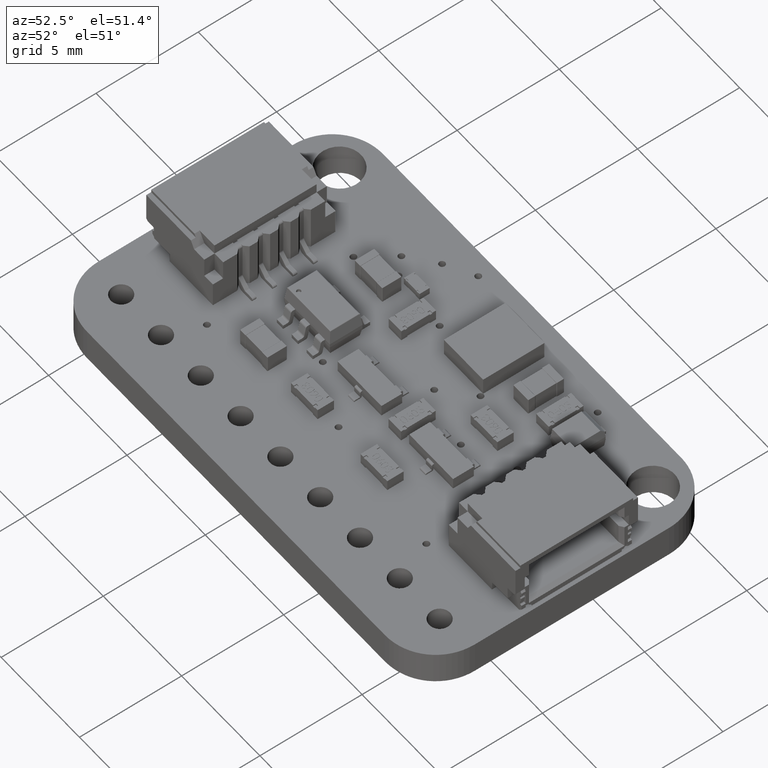
[diagram: clean part render]
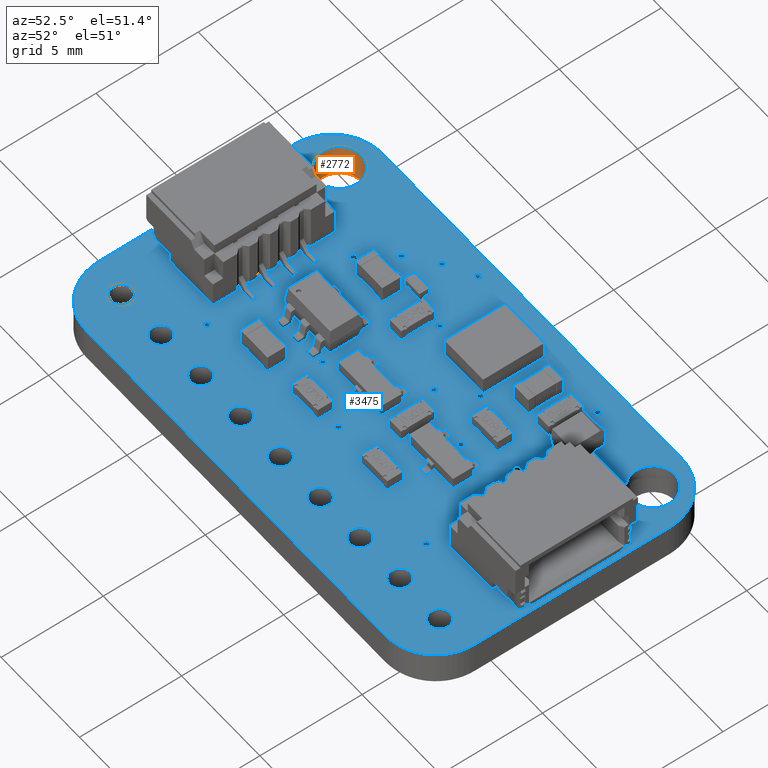
[diagram: same view with the hole feature highlighted: cylindrical wall and planar end face, labeled with their STEP entity ids]
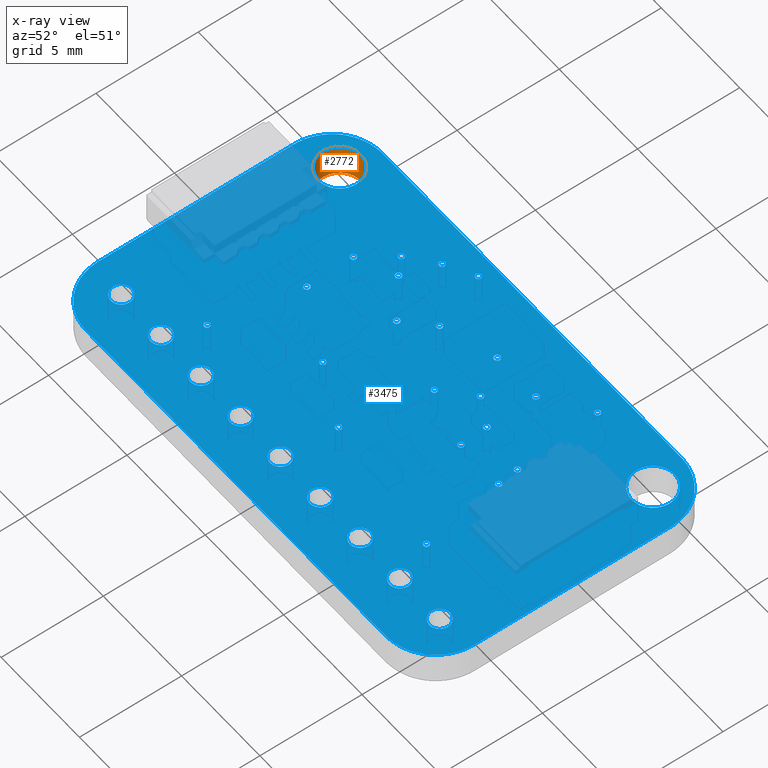
[diagram: x-ray of the same camera — body ghosted, the hole faces saturated]
A machine part, auxiliary view. The highlighted faces form one hole feature of diameter 2.1 mm: the cylindrical wall (entity #2772, orange) and its adjacent planar end face (entity #3475, blue) — they share a circular edge in the B-rep.
The next image is the same camera in x-ray (body ghosted, the hole faces saturated) — the bore reads through the body.
Wall:
#2772 = ADVANCED_FACE('',(#2773),#2800,.F.);
#2773 = FACE_BOUND('',#2774,.T.);
#2774 = EDGE_LOOP('',(#2775,#2785,#2792,#2793));
#2775 = ORIENTED_EDGE('',*,*,#2776,.T.);
#2776 = EDGE_CURVE('',#2777,#2779,#2781,.T.);
#2777 = VERTEX_POINT('',#2778);
#2778 = CARTESIAN_POINT('',(1.05,-0.75,-0.82));
#2779 = VERTEX_POINT('',#2780);
#2780 = CARTESIAN_POINT('',(1.05,-0.75,0.82));
#2781 = LINE('',#2782,#2783);
#2782 = CARTESIAN_POINT('',(1.05,-0.75,-0.82));
#2783 = VECTOR('',#2784,1.);
#2784 = DIRECTION('',(0.,0.,1.));
#2785 = ORIENTED_EDGE('',*,*,#2786,.T.);
#2786 = EDGE_CURVE('',#2779,#2779,#2787,.T.);
#2787 = CIRCLE('',#2788,1.05);
#2788 = AXIS2_PLACEMENT_3D('',#2789,#2790,#2791);
#2789 = CARTESIAN_POINT('',(0.,-0.75,0.82));
#2790 = DIRECTION('',(0.,0.,1.));
#2791 = DIRECTION('',(1.,0.,-0.));
#2792 = ORIENTED_EDGE('',*,*,#2776,.F.);
#2793 = ORIENTED_EDGE('',*,*,#2794,.F.);
#2794 = EDGE_CURVE('',#2777,#2777,#2795,.T.);
#2795 = CIRCLE('',#2796,1.05);
#2796 = AXIS2_PLACEMENT_3D('',#2797,#2798,#2799);
#2797 = CARTESIAN_POINT('',(0.,-0.75,-0.82));
#2798 = DIRECTION('',(0.,0.,1.));
#2799 = DIRECTION('',(1.,0.,-0.));
#2800 = CYLINDRICAL_SURFACE('',#2801,1.05);
#2801 = AXIS2_PLACEMENT_3D('',#2802,#2803,#2804);
#2802 = CARTESIAN_POINT('',(0.,-0.75,-0.82));
#2803 = DIRECTION('',(-0.,-0.,-1.));
#2804 = DIRECTION('',(1.,0.,-0.));
End face:
#110 = VERTEX_POINT('',#111);
#111 = CARTESIAN_POINT('',(19.5,1.,0.82));
#117 = EDGE_CURVE('',#110,#118,#120,.T.);
#118 = VERTEX_POINT('',#119);
#119 = CARTESIAN_POINT('',(0.5,1.,0.82));
#120 = LINE('',#121,#122);
#121 = CARTESIAN_POINT('',(19.5,1.,0.82));
#122 = VECTOR('',#123,1.);
#123 = DIRECTION('',(-1.,0.,0.));
#150 = VERTEX_POINT('',#151);
#151 = CARTESIAN_POINT('',(19.75982,0.98737,0.82));
#157 = EDGE_CURVE('',#150,#110,#158,.T.);
#158 = LINE('',#159,#160);
#159 = CARTESIAN_POINT('',(19.75982,0.98737,0.82));
#160 = VECTOR('',#161,1.);
#161 = DIRECTION('',(-0.998820595701,4.855324503005E-02,0.));
#179 = EDGE_CURVE('',#118,#180,#182,.T.);
#180 = VERTEX_POINT('',#181);
#181 = CARTESIAN_POINT('',(0.24018,0.98737,0.82));
#182 = LINE('',#183,#184);
#183 = CARTESIAN_POINT('',(0.5,1.,0.82));
#184 = VECTOR('',#185,1.);
#185 = DIRECTION('',(-0.998820595701,-4.855324503005E-02,0.));
#212 = VERTEX_POINT('',#213);
#213 = CARTESIAN_POINT('',(20.01117,0.95026,0.82));
#219 = EDGE_CURVE('',#212,#150,#220,.T.);
#220 = LINE('',#221,#222);
#221 = CARTESIAN_POINT('',(20.01117,0.95026,0.82));
#222 = VECTOR('',#223,1.);
#223 = DIRECTION('',(-0.989275824391,0.146059382706,0.));
#241 = EDGE_CURVE('',#180,#242,#244,.T.);
#242 = VERTEX_POINT('',#243);
#243 = CARTESIAN_POINT('',(-1.117E-02,0.95026,0.82));
#244 = LINE('',#245,#246);
#245 = CARTESIAN_POINT('',(0.24018,0.98737,0.82));
#246 = VECTOR('',#247,1.);
#247 = DIRECTION('',(-0.989275824391,-0.146059382706,0.));
#274 = VERTEX_POINT('',#275);
#275 = CARTESIAN_POINT('',(20.25291,0.88979,0.82));
#281 = EDGE_CURVE('',#274,#212,#282,.T.);
#282 = LINE('',#283,#284);
#283 = CARTESIAN_POINT('',(20.25291,0.88979,0.82));
#284 = VECTOR('',#285,1.);
#285 = DIRECTION('',(-0.970109442671,0.242667816656,0.));
#303 = EDGE_CURVE('',#242,#304,#306,.T.);
#304 = VERTEX_POINT('',#305);
#305 = CARTESIAN_POINT('',(-0.25291,0.88979,0.82));
#306 = LINE('',#307,#308);
#307 = CARTESIAN_POINT('',(-1.117E-02,0.95026,0.82));
#308 = VECTOR('',#309,1.);
#309 = DIRECTION('',(-0.970109442671,-0.242667816656,0.));
#336 = VERTEX_POINT('',#337);
#337 = CARTESIAN_POINT('',(20.48389,0.80713,0.82));
#343 = EDGE_CURVE('',#336,#274,#344,.T.);
#344 = LINE('',#345,#346);
#345 = CARTESIAN_POINT('',(20.48389,0.80713,0.82));
#346 = VECTOR('',#347,1.);
#347 = DIRECTION('',(-0.941525917724,0.336940567837,0.));
#365 = EDGE_CURVE('',#304,#366,#368,.T.);
#366 = VERTEX_POINT('',#367);
#367 = CARTESIAN_POINT('',(-0.48389,0.80713,0.82));
#368 = LINE('',#369,#370);
#369 = CARTESIAN_POINT('',(-0.25291,0.88979,0.82));
#370 = VECTOR('',#371,1.);
#371 = DIRECTION('',(-0.941525917724,-0.336940567837,0.));
#398 = VERTEX_POINT('',#399);
#399 = CARTESIAN_POINT('',(20.70297,0.70341,0.82));
#405 = EDGE_CURVE('',#398,#336,#406,.T.);
#406 = LINE('',#407,#408);
#407 = CARTESIAN_POINT('',(20.70297,0.70341,0.82));
#408 = VECTOR('',#409,1.);
#409 = DIRECTION('',(-0.903825184632,0.427901899534,0.));
#427 = EDGE_CURVE('',#366,#428,#430,.T.);
#428 = VERTEX_POINT('',#429);
#429 = CARTESIAN_POINT('',(-0.70297,0.70341,0.82));
#430 = LINE('',#431,#432);
#431 = CARTESIAN_POINT('',(-0.48389,0.80713,0.82));
#432 = VECTOR('',#433,1.);
#433 = DIRECTION('',(-0.903825184632,-0.427901899534,0.));
#460 = VERTEX_POINT('',#461);
#461 = CARTESIAN_POINT('',(20.909,0.57977,0.82));
#467 = EDGE_CURVE('',#460,#398,#468,.T.);
#468 = LINE('',#469,#470);
#469 = CARTESIAN_POINT('',(20.909,0.57977,0.82));
#470 = VECTOR('',#471,1.);
#471 = DIRECTION('',(-0.857452529276,0.514563076832,0.));
#489 = EDGE_CURVE('',#428,#490,#492,.T.);
#490 = VERTEX_POINT('',#491);
#491 = CARTESIAN_POINT('',(-0.909,0.57977,0.82));
#492 = LINE('',#493,#494);
#493 = CARTESIAN_POINT('',(-0.70297,0.70341,0.82));
#494 = VECTOR('',#495,1.);
#495 = DIRECTION('',(-0.857452529276,-0.514563076832,0.));
#522 = VERTEX_POINT('',#523);
#523 = CARTESIAN_POINT('',(21.10084,0.43737,0.82));
#529 = EDGE_CURVE('',#522,#460,#530,.T.);
#530 = LINE('',#531,#532);
#531 = CARTESIAN_POINT('',(21.10084,0.43737,0.82));
#532 = VECTOR('',#533,1.);
#533 = DIRECTION('',(-0.802963619462,0.596028041136,0.));
#551 = EDGE_CURVE('',#490,#552,#554,.T.);
#552 = VERTEX_POINT('',#553);
#553 = CARTESIAN_POINT('',(-1.10084,0.43737,0.82));
#554 = LINE('',#555,#556);
#555 = CARTESIAN_POINT('',(-0.909,0.57977,0.82));
#556 = VECTOR('',#557,1.);
#557 = DIRECTION('',(-0.802963619462,-0.596028041136,0.));
#584 = VERTEX_POINT('',#585);
#585 = CARTESIAN_POINT('',(21.27734,0.27734,0.82));
#591 = EDGE_CURVE('',#584,#522,#592,.T.);
#592 = LINE('',#593,#594);
#593 = CARTESIAN_POINT('',(21.27734,0.27734,0.82));
#594 = VECTOR('',#595,1.);
#595 = DIRECTION('',(-0.740826374458,0.671696570564,0.));
#613 = EDGE_CURVE('',#552,#614,#616,.T.);
#614 = VERTEX_POINT('',#615);
#615 = CARTESIAN_POINT('',(-1.27734,0.27734,0.82));
#616 = LINE('',#617,#618);
#617 = CARTESIAN_POINT('',(-1.10084,0.43737,0.82));
#618 = VECTOR('',#619,1.);
#619 = DIRECTION('',(-0.740826374458,-0.671696570564,0.));
#646 = VERTEX_POINT('',#647);
#647 = CARTESIAN_POINT('',(21.43737,0.10084,0.82));
#653 = EDGE_CURVE('',#646,#584,#654,.T.);
#654 = LINE('',#655,#656);
#655 = CARTESIAN_POINT('',(21.43737,0.10084,0.82));
#656 = VECTOR('',#657,1.);
#657 = DIRECTION('',(-0.671696570564,0.740826374458,0.));
#675 = EDGE_CURVE('',#614,#676,#678,.T.);
#676 = VERTEX_POINT('',#677);
#677 = CARTESIAN_POINT('',(-1.43737,0.10084,0.82));
#678 = LINE('',#679,#680);
#679 = CARTESIAN_POINT('',(-1.27734,0.27734,0.82));
#680 = VECTOR('',#681,1.);
#681 = DIRECTION('',(-0.671696570564,-0.740826374458,0.));
#708 = VERTEX_POINT('',#709);
#709 = CARTESIAN_POINT('',(21.57977,-9.1E-02,0.82));
#715 = EDGE_CURVE('',#708,#646,#716,.T.);
#716 = LINE('',#717,#718);
#717 = CARTESIAN_POINT('',(21.57977,-9.1E-02,0.82));
#718 = VECTOR('',#719,1.);
#719 = DIRECTION('',(-0.596028041136,0.802963619462,0.));
#737 = EDGE_CURVE('',#676,#738,#740,.T.);
#738 = VERTEX_POINT('',#739);
#739 = CARTESIAN_POINT('',(-1.57977,-9.1E-02,0.82));
#740 = LINE('',#741,#742);
#741 = CARTESIAN_POINT('',(-1.43737,0.10084,0.82));
#742 = VECTOR('',#743,1.);
#743 = DIRECTION('',(-0.596028041136,-0.802963619462,0.));
#770 = VERTEX_POINT('',#771);
#771 = CARTESIAN_POINT('',(21.70341,-0.29704,0.82));
#777 = EDGE_CURVE('',#770,#708,#778,.T.);
#778 = LINE('',#779,#780);
#779 = CARTESIAN_POINT('',(21.70341,-0.29704,0.82));
#780 = VECTOR('',#781,1.);
#781 = DIRECTION('',(-0.514544715016,0.857463548058,0.));
#799 = EDGE_CURVE('',#738,#800,#802,.T.);
#800 = VERTEX_POINT('',#801);
#801 = CARTESIAN_POINT('',(-1.70341,-0.29704,0.82));
#802 = LINE('',#803,#804);
#803 = CARTESIAN_POINT('',(-1.57977,-9.1E-02,0.82));
#804 = VECTOR('',#805,1.);
#805 = DIRECTION('',(-0.514544715016,-0.857463548058,0.));
#832 = VERTEX_POINT('',#833);
#833 = CARTESIAN_POINT('',(21.80713,-0.51611,0.82));
#839 = EDGE_CURVE('',#832,#770,#840,.T.);
#840 = LINE('',#841,#842);
#841 = CARTESIAN_POINT('',(21.80713,-0.51611,0.82));
#842 = VECTOR('',#843,1.);
#843 = DIRECTION('',(-0.427917855561,0.903817630328,0.));
#861 = EDGE_CURVE('',#800,#862,#864,.T.);
#862 = VERTEX_POINT('',#863);
#863 = CARTESIAN_POINT('',(-1.80713,-0.51611,0.82));
#864 = LINE('',#865,#866);
#865 = CARTESIAN_POINT('',(-1.70341,-0.29704,0.82));
#866 = VECTOR('',#867,1.);
#867 = DIRECTION('',(-0.427917855561,-0.903817630328,0.));
#894 = VERTEX_POINT('',#895);
#895 = CARTESIAN_POINT('',(21.88979,-0.74709,0.82));
#901 = EDGE_CURVE('',#894,#832,#902,.T.);
#902 = LINE('',#903,#904);
#903 = CARTESIAN_POINT('',(21.88979,-0.74709,0.82));
#904 = VECTOR('',#905,1.);
#905 = DIRECTION('',(-0.336940567837,0.941525917724,0.));
#923 = EDGE_CURVE('',#862,#924,#926,.T.);
#924 = VERTEX_POINT('',#925);
#925 = CARTESIAN_POINT('',(-1.88979,-0.74709,0.82));
#926 = LINE('',#927,#928);
#927 = CARTESIAN_POINT('',(-1.80713,-0.51611,0.82));
#928 = VECTOR('',#929,1.);
#929 = DIRECTION('',(-0.336940567837,-0.941525917724,0.));
#956 = VERTEX_POINT('',#957);
#957 = CARTESIAN_POINT('',(21.95026,-0.98883,0.82));
#963 = EDGE_CURVE('',#956,#894,#964,.T.);
#964 = LINE('',#965,#966);
#965 = CARTESIAN_POINT('',(21.95026,-0.98883,0.82));
#966 = VECTOR('',#967,1.);
#967 = DIRECTION('',(-0.242667816656,0.970109442671,0.));
#985 = EDGE_CURVE('',#924,#986,#988,.T.);
#986 = VERTEX_POINT('',#987);
#987 = CARTESIAN_POINT('',(-1.95026,-0.98883,0.82));
#988 = LINE('',#989,#990);
#989 = CARTESIAN_POINT('',(-1.88979,-0.74709,0.82));
#990 = VECTOR('',#991,1.);
#991 = DIRECTION('',(-0.242667816656,-0.970109442671,0.));
#1018 = VERTEX_POINT('',#1019);
#1019 = CARTESIAN_POINT('',(21.98737,-1.24018,0.82));
#1025 = EDGE_CURVE('',#1018,#956,#1026,.T.);
#1026 = LINE('',#1027,#1028);
#1027 = CARTESIAN_POINT('',(21.98737,-1.24018,0.82));
#1028 = VECTOR('',#1029,1.);
#1029 = DIRECTION('',(-0.146059382706,0.989275824391,0.));
#1047 = EDGE_CURVE('',#986,#1048,#1050,.T.);
#1048 = VERTEX_POINT('',#1049);
#1049 = CARTESIAN_POINT('',(-1.98737,-1.24018,0.82));
#1050 = LINE('',#1051,#1052);
#1051 = CARTESIAN_POINT('',(-1.95026,-0.98883,0.82));
#1052 = VECTOR('',#1053,1.);
#1053 = DIRECTION('',(-0.146059382706,-0.989275824391,0.));
#1080 = VERTEX_POINT('',#1081);
#1081 = CARTESIAN_POINT('',(22.,-1.5,0.82));
#1087 = EDGE_CURVE('',#1080,#1018,#1088,.T.);
#1088 = LINE('',#1089,#1090);
#1089 = CARTESIAN_POINT('',(22.,-1.5,0.82));
#1090 = VECTOR('',#1091,1.);
#1091 = DIRECTION('',(-4.855324503005E-02,0.998820595701,0.));
#1109 = EDGE_CURVE('',#1048,#1110,#1112,.T.);
#1110 = VERTEX_POINT('',#1111);
#1111 = CARTESIAN_POINT('',(-2.,-1.5,0.82));
#1112 = LINE('',#1113,#1114);
#1113 = CARTESIAN_POINT('',(-1.98737,-1.24018,0.82));
#1114 = VECTOR('',#1115,1.);
#1115 = DIRECTION('',(-4.855324503005E-02,-0.998820595701,0.));
#1142 = VERTEX_POINT('',#1143);
#1143 = CARTESIAN_POINT('',(22.,-11.,0.82));
#1149 = EDGE_CURVE('',#1142,#1080,#1150,.T.);
#1150 = LINE('',#1151,#1152);
#1151 = CARTESIAN_POINT('',(22.,-11.,0.82));
#1152 = VECTOR('',#1153,1.);
#1153 = DIRECTION('',(0.,1.,0.));
#1171 = EDGE_CURVE('',#1110,#1172,#1174,.T.);
#1172 = VERTEX_POINT('',#1173);
#1173 = CARTESIAN_POINT('',(-2.,-11.,0.82));
#1174 = LINE('',#1175,#1176);
#1175 = CARTESIAN_POINT('',(-2.,-1.5,0.82));
#1176 = VECTOR('',#1177,1.);
#1177 = DIRECTION('',(0.,-1.,0.));
#1204 = VERTEX_POINT('',#1205);
#1205 = CARTESIAN_POINT('',(21.98737,-11.25982,0.82));
#1211 = EDGE_CURVE('',#1204,#1142,#1212,.T.);
#1212 = LINE('',#1213,#1214);
#1213 = CARTESIAN_POINT('',(21.98737,-11.25982,0.82));
#1214 = VECTOR('',#1215,1.);
#1215 = DIRECTION('',(4.855324503005E-02,0.998820595701,0.));
#1233 = EDGE_CURVE('',#1172,#1234,#1236,.T.);
#1234 = VERTEX_POINT('',#1235);
#1235 = CARTESIAN_POINT('',(-1.98737,-11.25982,0.82));
#1236 = LINE('',#1237,#1238);
#1237 = CARTESIAN_POINT('',(-2.,-11.,0.82));
#1238 = VECTOR('',#1239,1.);
#1239 = DIRECTION('',(4.855324503005E-02,-0.998820595701,0.));
#1266 = VERTEX_POINT('',#1267);
#1267 = CARTESIAN_POINT('',(21.95026,-11.51117,0.82));
#1273 = EDGE_CURVE('',#1266,#1204,#1274,.T.);
#1274 = LINE('',#1275,#1276);
#1275 = CARTESIAN_POINT('',(21.95026,-11.51117,0.82));
#1276 = VECTOR('',#1277,1.);
#1277 = DIRECTION('',(0.146059382706,0.989275824391,0.));
#1295 = EDGE_CURVE('',#1234,#1296,#1298,.T.);
#1296 = VERTEX_POINT('',#1297);
#1297 = CARTESIAN_POINT('',(-1.95026,-11.51117,0.82));
#1298 = LINE('',#1299,#1300);
#1299 = CARTESIAN_POINT('',(-1.98737,-11.25982,0.82));
#1300 = VECTOR('',#1301,1.);
#1301 = DIRECTION('',(0.146059382706,-0.989275824391,0.));
#1328 = VERTEX_POINT('',#1329);
#1329 = CARTESIAN_POINT('',(21.88979,-11.75291,0.82));
#1335 = EDGE_CURVE('',#1328,#1266,#1336,.T.);
#1336 = LINE('',#1337,#1338);
#1337 = CARTESIAN_POINT('',(21.88979,-11.75291,0.82));
#1338 = VECTOR('',#1339,1.);
#1339 = DIRECTION('',(0.242667816656,0.970109442671,0.));
#1357 = EDGE_CURVE('',#1296,#1358,#1360,.T.);
#1358 = VERTEX_POINT('',#1359);
#1359 = CARTESIAN_POINT('',(-1.88979,-11.75291,0.82));
#1360 = LINE('',#1361,#1362);
#1361 = CARTESIAN_POINT('',(-1.95026,-11.51117,0.82));
#1362 = VECTOR('',#1363,1.);
#1363 = DIRECTION('',(0.242667816656,-0.970109442671,0.));
#1390 = VERTEX_POINT('',#1391);
#1391 = CARTESIAN_POINT('',(21.80713,-11.98389,0.82));
#1397 = EDGE_CURVE('',#1390,#1328,#1398,.T.);
#1398 = LINE('',#1399,#1400);
#1399 = CARTESIAN_POINT('',(21.80713,-11.98389,0.82));
#1400 = VECTOR('',#1401,1.);
#1401 = DIRECTION('',(0.336940567837,0.941525917724,0.));
#1419 = EDGE_CURVE('',#1358,#1420,#1422,.T.);
#1420 = VERTEX_POINT('',#1421);
#1421 = CARTESIAN_POINT('',(-1.80713,-11.98389,0.82));
#1422 = LINE('',#1423,#1424);
#1423 = CARTESIAN_POINT('',(-1.88979,-11.75291,0.82));
#1424 = VECTOR('',#1425,1.);
#1425 = DIRECTION('',(0.336940567837,-0.941525917724,0.));
#1452 = VERTEX_POINT('',#1453);
#1453 = CARTESIAN_POINT('',(21.70341,-12.20296,0.82));
#1459 = EDGE_CURVE('',#1452,#1390,#1460,.T.);
#1460 = LINE('',#1461,#1462);
#1461 = CARTESIAN_POINT('',(21.70341,-12.20296,0.82));
#1462 = VECTOR('',#1463,1.);
#1463 = DIRECTION('',(0.427917855561,0.903817630328,0.));
#1481 = EDGE_CURVE('',#1420,#1482,#1484,.T.);
#1482 = VERTEX_POINT('',#1483);
#1483 = CARTESIAN_POINT('',(-1.70341,-12.20296,0.82));
#1484 = LINE('',#1485,#1486);
#1485 = CARTESIAN_POINT('',(-1.80713,-11.98389,0.82));
#1486 = VECTOR('',#1487,1.);
#1487 = DIRECTION('',(0.427917855561,-0.903817630328,0.));
#1514 = VERTEX_POINT('',#1515);
#1515 = CARTESIAN_POINT('',(21.57977,-12.409,0.82));
#1521 = EDGE_CURVE('',#1514,#1452,#1522,.T.);
#1522 = LINE('',#1523,#1524);
#1523 = CARTESIAN_POINT('',(21.57977,-12.409,0.82));
#1524 = VECTOR('',#1525,1.);
#1525 = DIRECTION('',(0.514544715016,0.857463548058,0.));
#1543 = EDGE_CURVE('',#1482,#1544,#1546,.T.);
#1544 = VERTEX_POINT('',#1545);
#1545 = CARTESIAN_POINT('',(-1.57977,-12.409,0.82));
#1546 = LINE('',#1547,#1548);
#1547 = CARTESIAN_POINT('',(-1.70341,-12.20296,0.82));
#1548 = VECTOR('',#1549,1.);
#1549 = DIRECTION('',(0.514544715016,-0.857463548058,0.));
#1576 = VERTEX_POINT('',#1577);
#1577 = CARTESIAN_POINT('',(21.43737,-12.60084,0.82));
#1583 = EDGE_CURVE('',#1576,#1514,#1584,.T.);
#1584 = LINE('',#1585,#1586);
#1585 = CARTESIAN_POINT('',(21.43737,-12.60084,0.82));
#1586 = VECTOR('',#1587,1.);
#1587 = DIRECTION('',(0.596028041136,0.802963619462,0.));
#1605 = EDGE_CURVE('',#1544,#1606,#1608,.T.);
#1606 = VERTEX_POINT('',#1607);
#1607 = CARTESIAN_POINT('',(-1.43737,-12.60084,0.82));
#1608 = LINE('',#1609,#1610);
#1609 = CARTESIAN_POINT('',(-1.57977,-12.409,0.82));
#1610 = VECTOR('',#1611,1.);
#1611 = DIRECTION('',(0.596028041136,-0.802963619462,0.));
#1638 = VERTEX_POINT('',#1639);
#1639 = CARTESIAN_POINT('',(21.27734,-12.77734,0.82));
#1645 = EDGE_CURVE('',#1638,#1576,#1646,.T.);
#1646 = LINE('',#1647,#1648);
#1647 = CARTESIAN_POINT('',(21.27734,-12.77734,0.82));
#1648 = VECTOR('',#1649,1.);
#1649 = DIRECTION('',(0.671696570564,0.740826374458,0.));
#1667 = EDGE_CURVE('',#1606,#1668,#1670,.T.);
#1668 = VERTEX_POINT('',#1669);
#1669 = CARTESIAN_POINT('',(-1.27734,-12.77734,0.82));
#1670 = LINE('',#1671,#1672);
#1671 = CARTESIAN_POINT('',(-1.43737,-12.60084,0.82));
#1672 = VECTOR('',#1673,1.);
#1673 = DIRECTION('',(0.671696570564,-0.740826374458,0.));
#1700 = VERTEX_POINT('',#1701);
#1701 = CARTESIAN_POINT('',(21.10084,-12.93737,0.82));
#1707 = EDGE_CURVE('',#1700,#1638,#1708,.T.);
#1708 = LINE('',#1709,#1710);
#1709 = CARTESIAN_POINT('',(21.10084,-12.93737,0.82));
#1710 = VECTOR('',#1711,1.);
#1711 = DIRECTION('',(0.740826374458,0.671696570564,0.));
#1729 = EDGE_CURVE('',#1668,#1730,#1732,.T.);
#1730 = VERTEX_POINT('',#1731);
#1731 = CARTESIAN_POINT('',(-1.10084,-12.93737,0.82));
#1732 = LINE('',#1733,#1734);
#1733 = CARTESIAN_POINT('',(-1.27734,-12.77734,0.82));
#1734 = VECTOR('',#1735,1.);
#1735 = DIRECTION('',(0.740826374458,-0.671696570564,0.));
#1762 = VERTEX_POINT('',#1763);
#1763 = CARTESIAN_POINT('',(20.909,-13.07977,0.82));
#1769 = EDGE_CURVE('',#1762,#1700,#1770,.T.);
#1770 = LINE('',#1771,#1772);
#1771 = CARTESIAN_POINT('',(20.909,-13.07977,0.82));
#1772 = VECTOR('',#1773,1.);
#1773 = DIRECTION('',(0.802963619462,0.596028041136,0.));
#1791 = EDGE_CURVE('',#1730,#1792,#1794,.T.);
#1792 = VERTEX_POINT('',#1793);
#1793 = CARTESIAN_POINT('',(-0.909,-13.07977,0.82));
#1794 = LINE('',#1795,#1796);
#1795 = CARTESIAN_POINT('',(-1.10084,-12.93737,0.82));
#1796 = VECTOR('',#1797,1.);
#1797 = DIRECTION('',(0.802963619462,-0.596028041136,0.));
#1824 = VERTEX_POINT('',#1825);
#1825 = CARTESIAN_POINT('',(20.70297,-13.20341,0.82));
#1831 = EDGE_CURVE('',#1824,#1762,#1832,.T.);
#1832 = LINE('',#1833,#1834);
#1833 = CARTESIAN_POINT('',(20.70297,-13.20341,0.82));
#1834 = VECTOR('',#1835,1.);
#1835 = DIRECTION('',(0.857452529276,0.514563076832,0.));
#1853 = EDGE_CURVE('',#1792,#1854,#1856,.T.);
#1854 = VERTEX_POINT('',#1855);
#1855 = CARTESIAN_POINT('',(-0.70297,-13.20341,0.82));
#1856 = LINE('',#1857,#1858);
#1857 = CARTESIAN_POINT('',(-0.909,-13.07977,0.82));
#1858 = VECTOR('',#1859,1.);
#1859 = DIRECTION('',(0.857452529276,-0.514563076832,0.));
#1886 = VERTEX_POINT('',#1887);
#1887 = CARTESIAN_POINT('',(20.48389,-13.30713,0.82));
#1893 = EDGE_CURVE('',#1886,#1824,#1894,.T.);
#1894 = LINE('',#1895,#1896);
#1895 = CARTESIAN_POINT('',(20.48389,-13.30713,0.82));
#1896 = VECTOR('',#1897,1.);
#1897 = DIRECTION('',(0.903825184632,0.427901899534,0.));
#1915 = EDGE_CURVE('',#1854,#1916,#1918,.T.);
#1916 = VERTEX_POINT('',#1917);
#1917 = CARTESIAN_POINT('',(-0.48389,-13.30713,0.82));
#1918 = LINE('',#1919,#1920);
#1919 = CARTESIAN_POINT('',(-0.70297,-13.20341,0.82));
#1920 = VECTOR('',#1921,1.);
#1921 = DIRECTION('',(0.903825184632,-0.427901899534,0.));
#1948 = VERTEX_POINT('',#1949);
#1949 = CARTESIAN_POINT('',(20.25291,-13.38979,0.82));
#1955 = EDGE_CURVE('',#1948,#1886,#1956,.T.);
#1956 = LINE('',#1957,#1958);
#1957 = CARTESIAN_POINT('',(20.25291,-13.38979,0.82));
#1958 = VECTOR('',#1959,1.);
#1959 = DIRECTION('',(0.941525917724,0.336940567837,0.));
#1977 = EDGE_CURVE('',#1916,#1978,#1980,.T.);
#1978 = VERTEX_POINT('',#1979);
#1979 = CARTESIAN_POINT('',(-0.25291,-13.38979,0.82));
#1980 = LINE('',#1981,#1982);
#1981 = CARTESIAN_POINT('',(-0.48389,-13.30713,0.82));
#1982 = VECTOR('',#1983,1.);
#1983 = DIRECTION('',(0.941525917724,-0.336940567837,0.));
#2010 = VERTEX_POINT('',#2011);
#2011 = CARTESIAN_POINT('',(20.01117,-13.45026,0.82));
#2017 = EDGE_CURVE('',#2010,#1948,#2018,.T.);
#2018 = LINE('',#2019,#2020);
#2019 = CARTESIAN_POINT('',(20.01117,-13.45026,0.82));
#2020 = VECTOR('',#2021,1.);
#2021 = DIRECTION('',(0.970109442671,0.242667816656,0.));
#2039 = EDGE_CURVE('',#1978,#2040,#2042,.T.);
#2040 = VERTEX_POINT('',#2041);
#2041 = CARTESIAN_POINT('',(-1.117E-02,-13.45026,0.82));
#2042 = LINE('',#2043,#2044);
#2043 = CARTESIAN_POINT('',(-0.25291,-13.38979,0.82));
#2044 = VECTOR('',#2045,1.);
#2045 = DIRECTION('',(0.970109442671,-0.242667816656,0.));
#2072 = VERTEX_POINT('',#2073);
#2073 = CARTESIAN_POINT('',(19.75982,-13.48737,0.82));
#2079 = EDGE_CURVE('',#2072,#2010,#2080,.T.);
#2080 = LINE('',#2081,#2082);
#2081 = CARTESIAN_POINT('',(19.75982,-13.48737,0.82));
#2082 = VECTOR('',#2083,1.);
#2083 = DIRECTION('',(0.989275824391,0.146059382706,0.));
#2101 = EDGE_CURVE('',#2040,#2102,#2104,.T.);
#2102 = VERTEX_POINT('',#2103);
#2103 = CARTESIAN_POINT('',(0.24018,-13.48737,0.82));
#2104 = LINE('',#2105,#2106);
#2105 = CARTESIAN_POINT('',(-1.117E-02,-13.45026,0.82));
#2106 = VECTOR('',#2107,1.);
#2107 = DIRECTION('',(0.989275824391,-0.146059382706,0.));
#2134 = VERTEX_POINT('',#2135);
#2135 = CARTESIAN_POINT('',(19.5,-13.5,0.82));
#2141 = EDGE_CURVE('',#2134,#2072,#2142,.T.);
#2142 = LINE('',#2143,#2144);
#2143 = CARTESIAN_POINT('',(19.5,-13.5,0.82));
#2144 = VECTOR('',#2145,1.);
#2145 = DIRECTION('',(0.998820595701,4.855324503005E-02,0.));
#2163 = EDGE_CURVE('',#2102,#2164,#2166,.T.);
#2164 = VERTEX_POINT('',#2165);
#2165 = CARTESIAN_POINT('',(0.5,-13.5,0.82));
#2166 = LINE('',#2167,#2168);
#2167 = CARTESIAN_POINT('',(0.24018,-13.48737,0.82));
#2168 = VECTOR('',#2169,1.);
#2169 = DIRECTION('',(0.998820595701,-4.855324503005E-02,0.));
#2194 = EDGE_CURVE('',#2164,#2134,#2195,.T.);
#2195 = LINE('',#2196,#2197);
#2196 = CARTESIAN_POINT('',(0.5,-13.5,0.82));
#2197 = VECTOR('',#2198,1.);
#2198 = DIRECTION('',(1.,0.,0.));
#2218 = VERTEX_POINT('',#2219);
#2219 = CARTESIAN_POINT('',(0.348,-11.32154,0.82));
#2225 = EDGE_CURVE('',#2218,#2218,#2226,.T.);
#2226 = CIRCLE('',#2227,0.508);
#2227 = AXIS2_PLACEMENT_3D('',#2228,#2229,#2230);
#2228 = CARTESIAN_POINT('',(-0.16,-11.32154,0.82));
#2229 = DIRECTION('',(0.,0.,1.));
#2230 = DIRECTION('',(1.,0.,-0.));
#2251 = VERTEX_POINT('',#2252);
#2252 = CARTESIAN_POINT('',(2.888,-11.32154,0.82));
#2258 = EDGE_CURVE('',#2251,#2251,#2259,.T.);
#2259 = CIRCLE('',#2260,0.508);
#2260 = AXIS2_PLACEMENT_3D('',#2261,#2262,#2263);
#2261 = CARTESIAN_POINT('',(2.38,-11.32154,0.82));
#2262 = DIRECTION('',(0.,0.,1.));
#2263 = DIRECTION('',(1.,0.,-0.));
#2284 = VERTEX_POINT('',#2285);
#2285 = CARTESIAN_POINT('',(3.21253,-9.59368,0.82));
#2291 = EDGE_CURVE('',#2284,#2284,#2292,.T.);
#2292 = CIRCLE('',#2293,0.15);
#2293 = AXIS2_PLACEMENT_3D('',#2294,#2295,#2296);
#2294 = CARTESIAN_POINT('',(3.06253,-9.59368,0.82));
#2295 = DIRECTION('',(0.,0.,1.));
#2296 = DIRECTION('',(1.,0.,-0.));
#2317 = VERTEX_POINT('',#2318);
#2318 = CARTESIAN_POINT('',(5.428,-11.32154,0.82));
#2324 = EDGE_CURVE('',#2317,#2317,#2325,.T.);
#2325 = CIRCLE('',#2326,0.508);
#2326 = AXIS2_PLACEMENT_3D('',#2327,#2328,#2329);
#2327 = CARTESIAN_POINT('',(4.92,-11.32154,0.82));
#2328 = DIRECTION('',(0.,0.,1.));
#2329 = DIRECTION('',(1.,0.,-0.));
#2350 = VERTEX_POINT('',#2351);
#2351 = CARTESIAN_POINT('',(7.968,-11.32154,0.82));
#2357 = EDGE_CURVE('',#2350,#2350,#2358,.T.);
#2358 = CIRCLE('',#2359,0.508);
#2359 = AXIS2_PLACEMENT_3D('',#2360,#2361,#2362);
#2360 = CARTESIAN_POINT('',(7.46,-11.32154,0.82));
#2361 = DIRECTION('',(0.,0.,1.));
#2362 = DIRECTION('',(1.,0.,-0.));
#2383 = VERTEX_POINT('',#2384);
#2384 = CARTESIAN_POINT('',(7.41979,-7.15048,0.82));
#2390 = EDGE_CURVE('',#2383,#2383,#2391,.T.);
#2391 = CIRCLE('',#2392,0.15);
#2392 = AXIS2_PLACEMENT_3D('',#2393,#2394,#2395);
#2393 = CARTESIAN_POINT('',(7.26979,-7.15048,0.82));
#2394 = DIRECTION('',(0.,0.,1.));
#2395 = DIRECTION('',(1.,0.,-0.));
#2416 = VERTEX_POINT('',#2417);
#2417 = CARTESIAN_POINT('',(10.508,-11.32154,0.82));
#2423 = EDGE_CURVE('',#2416,#2416,#2424,.T.);
#2424 = CIRCLE('',#2425,0.508);
#2425 = AXIS2_PLACEMENT_3D('',#2426,#2427,#2428);
#2426 = CARTESIAN_POINT('',(10.,-11.32154,0.82));
#2427 = DIRECTION('',(0.,0.,1.));
#2428 = DIRECTION('',(1.,0.,-0.));
#2449 = VERTEX_POINT('',#2450);
#2450 = CARTESIAN_POINT('',(13.048,-11.32154,0.82));
#2456 = EDGE_CURVE('',#2449,#2449,#2457,.T.);
#2457 = CIRCLE('',#2458,0.508);
#2458 = AXIS2_PLACEMENT_3D('',#2459,#2460,#2461);
#2459 = CARTESIAN_POINT('',(12.54,-11.32154,0.82));
#2460 = DIRECTION('',(0.,0.,1.));
#2461 = DIRECTION('',(1.,0.,-0.));
#2482 = VERTEX_POINT('',#2483);
#2483 = CARTESIAN_POINT('',(15.588,-11.32154,0.82));
#2489 = EDGE_CURVE('',#2482,#2482,#2490,.T.);
#2490 = CIRCLE('',#2491,0.508);
#2491 = AXIS2_PLACEMENT_3D('',#2492,#2493,#2494);
#2492 = CARTESIAN_POINT('',(15.08,-11.32154,0.82));
#2493 = DIRECTION('',(0.,0.,1.));
#2494 = DIRECTION('',(1.,0.,-0.));
#2515 = VERTEX_POINT('',#2516);
#2516 = CARTESIAN_POINT('',(18.128,-11.32154,0.82));
#2522 = EDGE_CURVE('',#2515,#2515,#2523,.T.);
#2523 = CIRCLE('',#2524,0.508);
#2524 = AXIS2_PLACEMENT_3D('',#2525,#2526,#2527);
#2525 = CARTESIAN_POINT('',(17.62,-11.32154,0.82));
#2526 = DIRECTION('',(0.,0.,1.));
#2527 = DIRECTION('',(1.,0.,-0.));
#2548 = VERTEX_POINT('',#2549);
#2549 = CARTESIAN_POINT('',(20.668,-11.32154,0.82));
#2555 = EDGE_CURVE('',#2548,#2548,#2556,.T.);
#2556 = CIRCLE('',#2557,0.508);
#2557 = AXIS2_PLACEMENT_3D('',#2558,#2559,#2560);
#2558 = CARTESIAN_POINT('',(20.16,-11.32154,0.82));
#2559 = DIRECTION('',(0.,0.,1.));
#2560 = DIRECTION('',(1.,0.,-0.));
#2581 = VERTEX_POINT('',#2582);
#2582 = CARTESIAN_POINT('',(17.041,-9.45926,0.82));
#2588 = EDGE_CURVE('',#2581,#2581,#2589,.T.);
#2589 = CIRCLE('',#2590,0.15);
#2590 = AXIS2_PLACEMENT_3D('',#2591,#2592,#2593);
#2591 = CARTESIAN_POINT('',(16.891,-9.45926,0.82));
#2592 = DIRECTION('',(0.,0.,1.));
#2593 = DIRECTION('',(1.,0.,-0.));
#2614 = VERTEX_POINT('',#2615);
#2615 = CARTESIAN_POINT('',(10.36004,-8.636,0.82));
#2621 = EDGE_CURVE('',#2614,#2614,#2622,.T.);
#2622 = CIRCLE('',#2623,0.15);
#2623 = AXIS2_PLACEMENT_3D('',#2624,#2625,#2626);
#2624 = CARTESIAN_POINT('',(10.21004,-8.636,0.82));
#2625 = DIRECTION('',(0.,0.,1.));
#2626 = DIRECTION('',(1.,0.,-0.));
#2647 = VERTEX_POINT('',#2648);
#2648 = CARTESIAN_POINT('',(10.52377,-6.14909,0.82));
#2654 = EDGE_CURVE('',#2647,#2647,#2655,.T.);
#2655 = CIRCLE('',#2656,0.15);
#2656 = AXIS2_PLACEMENT_3D('',#2657,#2658,#2659);
#2657 = CARTESIAN_POINT('',(10.37377,-6.14909,0.82));
#2658 = DIRECTION('',(0.,0.,1.));
#2659 = DIRECTION('',(1.,0.,-0.));
#2680 = VERTEX_POINT('',#2681);
#2681 = CARTESIAN_POINT('',(4.07545,-5.36554,0.82));
#2687 = EDGE_CURVE('',#2680,#2680,#2688,.T.);
#2688 = CIRCLE('',#2689,0.15);
#2689 = AXIS2_PLACEMENT_3D('',#2690,#2691,#2692);
#2690 = CARTESIAN_POINT('',(3.92545,-5.36554,0.82));
#2691 = DIRECTION('',(0.,0.,1.));
#2692 = DIRECTION('',(1.,0.,-0.));
#2713 = VERTEX_POINT('',#2714);
#2714 = CARTESIAN_POINT('',(3.99736,-3.02518,0.82));
#2720 = EDGE_CURVE('',#2713,#2713,#2721,.T.);
#2721 = CIRCLE('',#2722,0.15);
#2722 = AXIS2_PLACEMENT_3D('',#2723,#2724,#2725);
#2723 = CARTESIAN_POINT('',(3.84736,-3.02518,0.82));
#2724 = DIRECTION('',(0.,0.,1.));
#2725 = DIRECTION('',(1.,0.,-0.));
#2746 = VERTEX_POINT('',#2747);
#2747 = CARTESIAN_POINT('',(7.54589,-3.62698,0.82));
#2753 = EDGE_CURVE('',#2746,#2746,#2754,.T.);
#2754 = CIRCLE('',#2755,0.15);
#2755 = AXIS2_PLACEMENT_3D('',#2756,#2757,#2758);
#2756 = CARTESIAN_POINT('',(7.39589,-3.62698,0.82));
#2757 = DIRECTION('',(0.,0.,1.));
#2758 = DIRECTION('',(1.,0.,-0.));
#2779 = VERTEX_POINT('',#2780);
#2780 = CARTESIAN_POINT('',(1.05,-0.75,0.82));
#2786 = EDGE_CURVE('',#2779,#2779,#2787,.T.);
#2787 = CIRCLE('',#2788,1.05);
#2788 = AXIS2_PLACEMENT_3D('',#2789,#2790,#2791);
#2789 = CARTESIAN_POINT('',(0.,-0.75,0.82));
#2790 = DIRECTION('',(0.,0.,1.));
#2791 = DIRECTION('',(1.,0.,-0.));
#2812 = VERTEX_POINT('',#2813);
#2813 = CARTESIAN_POINT('',(5.80097,-2.20339,0.82));
#2819 = EDGE_CURVE('',#2812,#2812,#2820,.T.);
#2820 = CIRCLE('',#2821,0.15);
#2821 = AXIS2_PLACEMENT_3D('',#2822,#2823,#2824);
#2822 = CARTESIAN_POINT('',(5.65097,-2.20339,0.82));
#2823 = DIRECTION('',(0.,0.,1.));
#2824 = DIRECTION('',(1.,0.,-0.));
#2845 = VERTEX_POINT('',#2846);
#2846 = CARTESIAN_POINT('',(5.103,-1.524,0.82));
#2852 = EDGE_CURVE('',#2845,#2845,#2853,.T.);
#2853 = CIRCLE('',#2854,0.15);
#2854 = AXIS2_PLACEMENT_3D('',#2855,#2856,#2857);
#2855 = CARTESIAN_POINT('',(4.953,-1.524,0.82));
#2856 = DIRECTION('',(0.,0.,1.));
#2857 = DIRECTION('',(1.,0.,-0.));
#2878 = VERTEX_POINT('',#2879);
#2879 = CARTESIAN_POINT('',(8.76035,-2.45534,0.82));
#2885 = EDGE_CURVE('',#2878,#2878,#2886,.T.);
#2886 = CIRCLE('',#2887,0.15);
#2887 = AXIS2_PLACEMENT_3D('',#2888,#2889,#2890);
#2888 = CARTESIAN_POINT('',(8.61035,-2.45534,0.82));
#2889 = DIRECTION('',(0.,0.,1.));
#2890 = DIRECTION('',(1.,0.,-0.));
#2911 = VERTEX_POINT('',#2912);
#2912 = CARTESIAN_POINT('',(6.373,-0.508,0.82));
#2918 = EDGE_CURVE('',#2911,#2911,#2919,.T.);
#2919 = CIRCLE('',#2920,0.15);
#2920 = AXIS2_PLACEMENT_3D('',#2921,#2922,#2923);
#2921 = CARTESIAN_POINT('',(6.223,-0.508,0.82));
#2922 = DIRECTION('',(0.,0.,1.));
#2923 = DIRECTION('',(1.,0.,-0.));
#2944 = VERTEX_POINT('',#2945);
#2945 = CARTESIAN_POINT('',(7.71091,0.23589,0.82));
#2951 = EDGE_CURVE('',#2944,#2944,#2952,.T.);
#2952 = CIRCLE('',#2953,0.15);
#2953 = AXIS2_PLACEMENT_3D('',#2954,#2955,#2956);
#2954 = CARTESIAN_POINT('',(7.56091,0.23589,0.82));
#2955 = DIRECTION('',(0.,0.,1.));
#2956 = DIRECTION('',(1.,0.,-0.));
#2977 = VERTEX_POINT('',#2978);
#2978 = CARTESIAN_POINT('',(11.15316,-4.55791,0.82));
#2984 = EDGE_CURVE('',#2977,#2977,#2985,.T.);
#2985 = CIRCLE('',#2986,0.15);
#2986 = AXIS2_PLACEMENT_3D('',#2987,#2988,#2989);
#2987 = CARTESIAN_POINT('',(11.00316,-4.55791,0.82));
#2988 = DIRECTION('',(0.,0.,1.));
#2989 = DIRECTION('',(1.,0.,-0.));
#3010 = VERTEX_POINT('',#3011);
#3011 = CARTESIAN_POINT('',(13.94314,-5.39491,0.82));
#3017 = EDGE_CURVE('',#3010,#3010,#3018,.T.);
#3018 = CIRCLE('',#3019,0.15);
#3019 = AXIS2_PLACEMENT_3D('',#3020,#3021,#3022);
#3020 = CARTESIAN_POINT('',(13.79314,-5.39491,0.82));
#3021 = DIRECTION('',(0.,0.,1.));
#3022 = DIRECTION('',(1.,0.,-0.));
#3043 = VERTEX_POINT('',#3044);
#3044 = CARTESIAN_POINT('',(12.49721,-3.32143,0.82));
#3050 = EDGE_CURVE('',#3043,#3043,#3051,.T.);
#3051 = CIRCLE('',#3052,0.15);
#3052 = AXIS2_PLACEMENT_3D('',#3053,#3054,#3055);
#3053 = CARTESIAN_POINT('',(12.34721,-3.32143,0.82));
#3054 = DIRECTION('',(0.,0.,1.));
#3055 = DIRECTION('',(1.,0.,-0.));
#3076 = VERTEX_POINT('',#3077);
#3077 = CARTESIAN_POINT('',(13.866,-4.064,0.82));
#3083 = EDGE_CURVE('',#3076,#3076,#3084,.T.);
#3084 = CIRCLE('',#3085,0.15);
#3085 = AXIS2_PLACEMENT_3D('',#3086,#3087,#3088);
#3086 = CARTESIAN_POINT('',(13.716,-4.064,0.82));
#3087 = DIRECTION('',(0.,0.,1.));
#3088 = DIRECTION('',(1.,0.,-0.));
#3109 = VERTEX_POINT('',#3110);
#3110 = CARTESIAN_POINT('',(16.384,-5.416,0.82));
#3116 = EDGE_CURVE('',#3109,#3109,#3117,.T.);
#3117 = CIRCLE('',#3118,0.15);
#3118 = AXIS2_PLACEMENT_3D('',#3119,#3120,#3121);
#3119 = CARTESIAN_POINT('',(16.234,-5.416,0.82));
#3120 = DIRECTION('',(0.,0.,1.));
#3121 = DIRECTION('',(1.,0.,-0.));
#3142 = VERTEX_POINT('',#3143);
#3143 = CARTESIAN_POINT('',(16.257,-4.4,0.82));
#3149 = EDGE_CURVE('',#3142,#3142,#3150,.T.);
#3150 = CIRCLE('',#3151,0.15);
#3151 = AXIS2_PLACEMENT_3D('',#3152,#3153,#3154);
#3152 = CARTESIAN_POINT('',(16.107,-4.4,0.82));
#3153 = DIRECTION('',(0.,0.,1.));
#3154 = DIRECTION('',(1.,0.,-0.));
#3175 = VERTEX_POINT('',#3176);
#3176 = CARTESIAN_POINT('',(11.37867,-1.64855,0.82));
#3182 = EDGE_CURVE('',#3175,#3175,#3183,.T.);
#3183 = CIRCLE('',#3184,0.15);
#3184 = AXIS2_PLACEMENT_3D('',#3185,#3186,#3187);
#3185 = CARTESIAN_POINT('',(11.22867,-1.64855,0.82));
#3186 = DIRECTION('',(0.,0.,1.));
#3187 = DIRECTION('',(1.,0.,-0.));
#3208 = VERTEX_POINT('',#3209);
#3209 = CARTESIAN_POINT('',(13.825,-1.6314,0.82));
#3215 = EDGE_CURVE('',#3208,#3208,#3216,.T.);
#3216 = CIRCLE('',#3217,0.15);
#3217 = AXIS2_PLACEMENT_3D('',#3218,#3219,#3220);
#3218 = CARTESIAN_POINT('',(13.675,-1.6314,0.82));
#3219 = DIRECTION('',(0.,0.,1.));
#3220 = DIRECTION('',(1.,0.,-0.));
#3241 = VERTEX_POINT('',#3242);
#3242 = CARTESIAN_POINT('',(15.91211,-0.20911,0.82));
#3248 = EDGE_CURVE('',#3241,#3241,#3249,.T.);
#3249 = CIRCLE('',#3250,0.15);
#3250 = AXIS2_PLACEMENT_3D('',#3251,#3252,#3253);
#3251 = CARTESIAN_POINT('',(15.76211,-0.20911,0.82));
#3252 = DIRECTION('',(0.,0.,1.));
#3253 = DIRECTION('',(1.,0.,-0.));
#3274 = VERTEX_POINT('',#3275);
#3275 = CARTESIAN_POINT('',(21.05,-0.75,0.82));
#3281 = EDGE_CURVE('',#3274,#3274,#3282,.T.);
#3282 = CIRCLE('',#3283,1.05);
#3283 = AXIS2_PLACEMENT_3D('',#3284,#3285,#3286);
#3284 = CARTESIAN_POINT('',(20.,-0.75,0.82));
#3285 = DIRECTION('',(0.,0.,1.));
#3286 = DIRECTION('',(1.,0.,-0.));
#3475 = ADVANCED_FACE('',(#3476,#3546,#3549,#3552,#3555,#3558,#3561,
    #3564,#3567,#3570,#3573,#3576,#3579,#3582,#3585,#3588,#3591,#3594,
    #3597,#3600,#3603,#3606,#3609,#3612,#3615,#3618,#3621,#3624,#3627,
    #3630,#3633,#3636,#3639,#3642),#3645,.T.);
#3476 = FACE_BOUND('',#3477,.T.);
#3477 = EDGE_LOOP('',(#3478,#3479,#3480,#3481,#3482,#3483,#3484,#3485,
    #3486,#3487,#3488,#3489,#3490,#3491,#3492,#3493,#3494,#3495,#3496,
    #3497,#3498,#3499,#3500,#3501,#3502,#3503,#3504,#3505,#3506,#3507,
    #3508,#3509,#3510,#3511,#3512,#3513,#3514,#3515,#3516,#3517,#3518,
    #3519,#3520,#3521,#3522,#3523,#3524,#3525,#3526,#3527,#3528,#3529,
    #3530,#3531,#3532,#3533,#3534,#3535,#3536,#3537,#3538,#3539,#3540,
    #3541,#3542,#3543,#3544,#3545));
#3478 = ORIENTED_EDGE('',*,*,#117,.T.);
#3479 = ORIENTED_EDGE('',*,*,#179,.T.);
#3480 = ORIENTED_EDGE('',*,*,#241,.T.);
#3481 = ORIENTED_EDGE('',*,*,#303,.T.);
#3482 = ORIENTED_EDGE('',*,*,#365,.T.);
#3483 = ORIENTED_EDGE('',*,*,#427,.T.);
#3484 = ORIENTED_EDGE('',*,*,#489,.T.);
#3485 = ORIENTED_EDGE('',*,*,#551,.T.);
#3486 = ORIENTED_EDGE('',*,*,#613,.T.);
#3487 = ORIENTED_EDGE('',*,*,#675,.T.);
#3488 = ORIENTED_EDGE('',*,*,#737,.T.);
#3489 = ORIENTED_EDGE('',*,*,#799,.T.);
#3490 = ORIENTED_EDGE('',*,*,#861,.T.);
#3491 = ORIENTED_EDGE('',*,*,#923,.T.);
#3492 = ORIENTED_EDGE('',*,*,#985,.T.);
#3493 = ORIENTED_EDGE('',*,*,#1047,.T.);
#3494 = ORIENTED_EDGE('',*,*,#1109,.T.);
#3495 = ORIENTED_EDGE('',*,*,#1171,.T.);
#3496 = ORIENTED_EDGE('',*,*,#1233,.T.);
#3497 = ORIENTED_EDGE('',*,*,#1295,.T.);
#3498 = ORIENTED_EDGE('',*,*,#1357,.T.);
#3499 = ORIENTED_EDGE('',*,*,#1419,.T.);
#3500 = ORIENTED_EDGE('',*,*,#1481,.T.);
#3501 = ORIENTED_EDGE('',*,*,#1543,.T.);
#3502 = ORIENTED_EDGE('',*,*,#1605,.T.);
#3503 = ORIENTED_EDGE('',*,*,#1667,.T.);
#3504 = ORIENTED_EDGE('',*,*,#1729,.T.);
#3505 = ORIENTED_EDGE('',*,*,#1791,.T.);
#3506 = ORIENTED_EDGE('',*,*,#1853,.T.);
#3507 = ORIENTED_EDGE('',*,*,#1915,.T.);
#3508 = ORIENTED_EDGE('',*,*,#1977,.T.);
#3509 = ORIENTED_EDGE('',*,*,#2039,.T.);
#3510 = ORIENTED_EDGE('',*,*,#2101,.T.);
#3511 = ORIENTED_EDGE('',*,*,#2163,.T.);
#3512 = ORIENTED_EDGE('',*,*,#2194,.T.);
#3513 = ORIENTED_EDGE('',*,*,#2141,.T.);
#3514 = ORIENTED_EDGE('',*,*,#2079,.T.);
#3515 = ORIENTED_EDGE('',*,*,#2017,.T.);
#3516 = ORIENTED_EDGE('',*,*,#1955,.T.);
#3517 = ORIENTED_EDGE('',*,*,#1893,.T.);
#3518 = ORIENTED_EDGE('',*,*,#1831,.T.);
#3519 = ORIENTED_EDGE('',*,*,#1769,.T.);
#3520 = ORIENTED_EDGE('',*,*,#1707,.T.);
#3521 = ORIENTED_EDGE('',*,*,#1645,.T.);
#3522 = ORIENTED_EDGE('',*,*,#1583,.T.);
#3523 = ORIENTED_EDGE('',*,*,#1521,.T.);
#3524 = ORIENTED_EDGE('',*,*,#1459,.T.);
#3525 = ORIENTED_EDGE('',*,*,#1397,.T.);
#3526 = ORIENTED_EDGE('',*,*,#1335,.T.);
#3527 = ORIENTED_EDGE('',*,*,#1273,.T.);
#3528 = ORIENTED_EDGE('',*,*,#1211,.T.);
#3529 = ORIENTED_EDGE('',*,*,#1149,.T.);
#3530 = ORIENTED_EDGE('',*,*,#1087,.T.);
#3531 = ORIENTED_EDGE('',*,*,#1025,.T.);
#3532 = ORIENTED_EDGE('',*,*,#963,.T.);
#3533 = ORIENTED_EDGE('',*,*,#901,.T.);
#3534 = ORIENTED_EDGE('',*,*,#839,.T.);
#3535 = ORIENTED_EDGE('',*,*,#777,.T.);
#3536 = ORIENTED_EDGE('',*,*,#715,.T.);
#3537 = ORIENTED_EDGE('',*,*,#653,.T.);
#3538 = ORIENTED_EDGE('',*,*,#591,.T.);
#3539 = ORIENTED_EDGE('',*,*,#529,.T.);
#3540 = ORIENTED_EDGE('',*,*,#467,.T.);
#3541 = ORIENTED_EDGE('',*,*,#405,.T.);
#3542 = ORIENTED_EDGE('',*,*,#343,.T.);
#3543 = ORIENTED_EDGE('',*,*,#281,.T.);
#3544 = ORIENTED_EDGE('',*,*,#219,.T.);
#3545 = ORIENTED_EDGE('',*,*,#157,.T.);
#3546 = FACE_BOUND('',#3547,.T.);
#3547 = EDGE_LOOP('',(#3548));
#3548 = ORIENTED_EDGE('',*,*,#2225,.F.);
#3549 = FACE_BOUND('',#3550,.T.);
#3550 = EDGE_LOOP('',(#3551));
#3551 = ORIENTED_EDGE('',*,*,#2258,.F.);
#3552 = FACE_BOUND('',#3553,.T.);
#3553 = EDGE_LOOP('',(#3554));
#3554 = ORIENTED_EDGE('',*,*,#2291,.F.);
#3555 = FACE_BOUND('',#3556,.T.);
#3556 = EDGE_LOOP('',(#3557));
#3557 = ORIENTED_EDGE('',*,*,#2324,.F.);
#3558 = FACE_BOUND('',#3559,.T.);
#3559 = EDGE_LOOP('',(#3560));
#3560 = ORIENTED_EDGE('',*,*,#2357,.F.);
#3561 = FACE_BOUND('',#3562,.T.);
#3562 = EDGE_LOOP('',(#3563));
#3563 = ORIENTED_EDGE('',*,*,#2390,.F.);
#3564 = FACE_BOUND('',#3565,.T.);
#3565 = EDGE_LOOP('',(#3566));
#3566 = ORIENTED_EDGE('',*,*,#2423,.F.);
#3567 = FACE_BOUND('',#3568,.T.);
#3568 = EDGE_LOOP('',(#3569));
#3569 = ORIENTED_EDGE('',*,*,#2456,.F.);
#3570 = FACE_BOUND('',#3571,.T.);
#3571 = EDGE_LOOP('',(#3572));
#3572 = ORIENTED_EDGE('',*,*,#2489,.F.);
#3573 = FACE_BOUND('',#3574,.T.);
#3574 = EDGE_LOOP('',(#3575));
#3575 = ORIENTED_EDGE('',*,*,#2522,.F.);
#3576 = FACE_BOUND('',#3577,.T.);
#3577 = EDGE_LOOP('',(#3578));
#3578 = ORIENTED_EDGE('',*,*,#2555,.F.);
#3579 = FACE_BOUND('',#3580,.T.);
#3580 = EDGE_LOOP('',(#3581));
#3581 = ORIENTED_EDGE('',*,*,#2588,.F.);
#3582 = FACE_BOUND('',#3583,.T.);
#3583 = EDGE_LOOP('',(#3584));
#3584 = ORIENTED_EDGE('',*,*,#2621,.F.);
#3585 = FACE_BOUND('',#3586,.T.);
#3586 = EDGE_LOOP('',(#3587));
#3587 = ORIENTED_EDGE('',*,*,#2654,.F.);
#3588 = FACE_BOUND('',#3589,.T.);
#3589 = EDGE_LOOP('',(#3590));
#3590 = ORIENTED_EDGE('',*,*,#2687,.F.);
#3591 = FACE_BOUND('',#3592,.T.);
#3592 = EDGE_LOOP('',(#3593));
#3593 = ORIENTED_EDGE('',*,*,#2720,.F.);
#3594 = FACE_BOUND('',#3595,.T.);
#3595 = EDGE_LOOP('',(#3596));
#3596 = ORIENTED_EDGE('',*,*,#2753,.F.);
#3597 = FACE_BOUND('',#3598,.T.);
#3598 = EDGE_LOOP('',(#3599));
#3599 = ORIENTED_EDGE('',*,*,#2786,.F.);
#3600 = FACE_BOUND('',#3601,.T.);
#3601 = EDGE_LOOP('',(#3602));
#3602 = ORIENTED_EDGE('',*,*,#2819,.F.);
#3603 = FACE_BOUND('',#3604,.T.);
#3604 = EDGE_LOOP('',(#3605));
#3605 = ORIENTED_EDGE('',*,*,#2852,.F.);
#3606 = FACE_BOUND('',#3607,.T.);
#3607 = EDGE_LOOP('',(#3608));
#3608 = ORIENTED_EDGE('',*,*,#2885,.F.);
#3609 = FACE_BOUND('',#3610,.T.);
#3610 = EDGE_LOOP('',(#3611));
#3611 = ORIENTED_EDGE('',*,*,#2918,.F.);
#3612 = FACE_BOUND('',#3613,.T.);
#3613 = EDGE_LOOP('',(#3614));
#3614 = ORIENTED_EDGE('',*,*,#2951,.F.);
#3615 = FACE_BOUND('',#3616,.T.);
#3616 = EDGE_LOOP('',(#3617));
#3617 = ORIENTED_EDGE('',*,*,#2984,.F.);
#3618 = FACE_BOUND('',#3619,.T.);
#3619 = EDGE_LOOP('',(#3620));
#3620 = ORIENTED_EDGE('',*,*,#3017,.F.);
#3621 = FACE_BOUND('',#3622,.T.);
#3622 = EDGE_LOOP('',(#3623));
#3623 = ORIENTED_EDGE('',*,*,#3050,.F.);
#3624 = FACE_BOUND('',#3625,.T.);
#3625 = EDGE_LOOP('',(#3626));
#3626 = ORIENTED_EDGE('',*,*,#3083,.F.);
#3627 = FACE_BOUND('',#3628,.T.);
#3628 = EDGE_LOOP('',(#3629));
#3629 = ORIENTED_EDGE('',*,*,#3116,.F.);
#3630 = FACE_BOUND('',#3631,.T.);
#3631 = EDGE_LOOP('',(#3632));
#3632 = ORIENTED_EDGE('',*,*,#3149,.F.);
#3633 = FACE_BOUND('',#3634,.T.);
#3634 = EDGE_LOOP('',(#3635));
#3635 = ORIENTED_EDGE('',*,*,#3182,.F.);
#3636 = FACE_BOUND('',#3637,.T.);
#3637 = EDGE_LOOP('',(#3638));
#3638 = ORIENTED_EDGE('',*,*,#3215,.F.);
#3639 = FACE_BOUND('',#3640,.T.);
#3640 = EDGE_LOOP('',(#3641));
#3641 = ORIENTED_EDGE('',*,*,#3248,.F.);
#3642 = FACE_BOUND('',#3643,.T.);
#3643 = EDGE_LOOP('',(#3644));
#3644 = ORIENTED_EDGE('',*,*,#3281,.F.);
#3645 = PLANE('',#3646);
#3646 = AXIS2_PLACEMENT_3D('',#3647,#3648,#3649);
#3647 = CARTESIAN_POINT('',(10.,-6.25,0.82));
#3648 = DIRECTION('',(0.,0.,1.));
#3649 = DIRECTION('',(1.,0.,-0.));